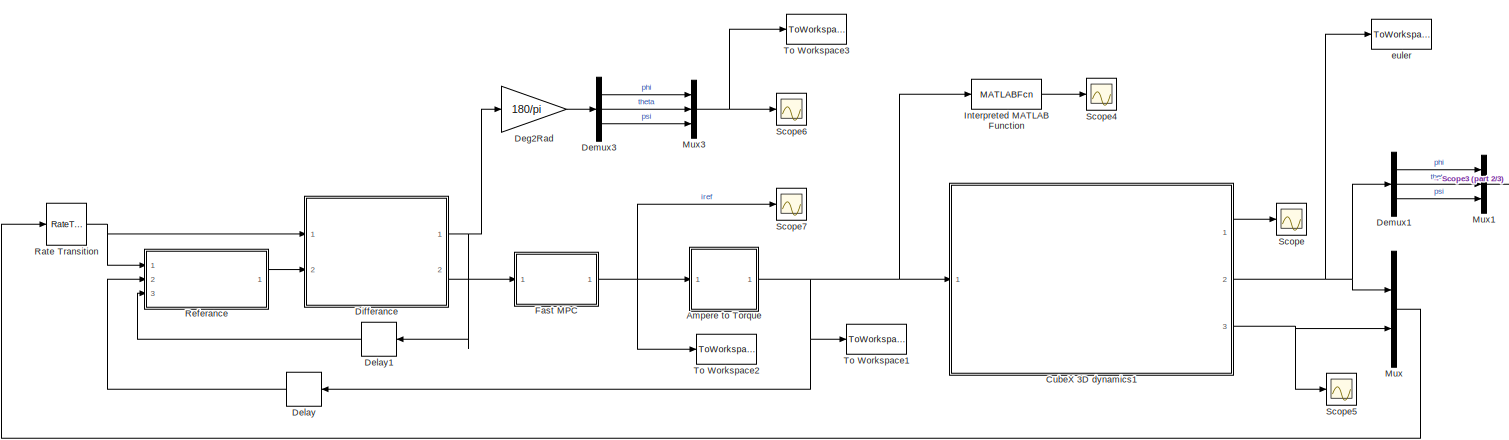
[diagram: root canvas - part 1/3, full width, top band]
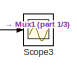
[diagram: root canvas - part 2/3, top right region]
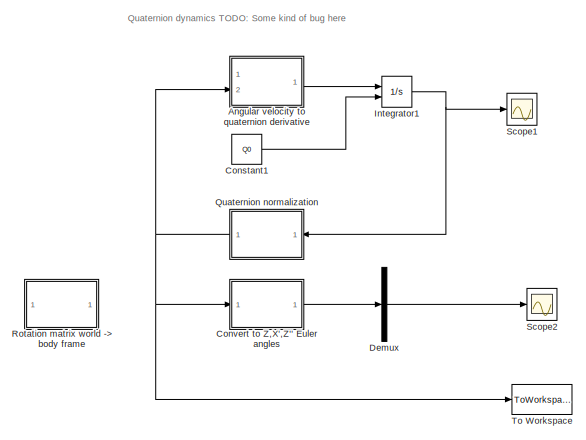
[diagram: root canvas - part 3/3, bottom center region]
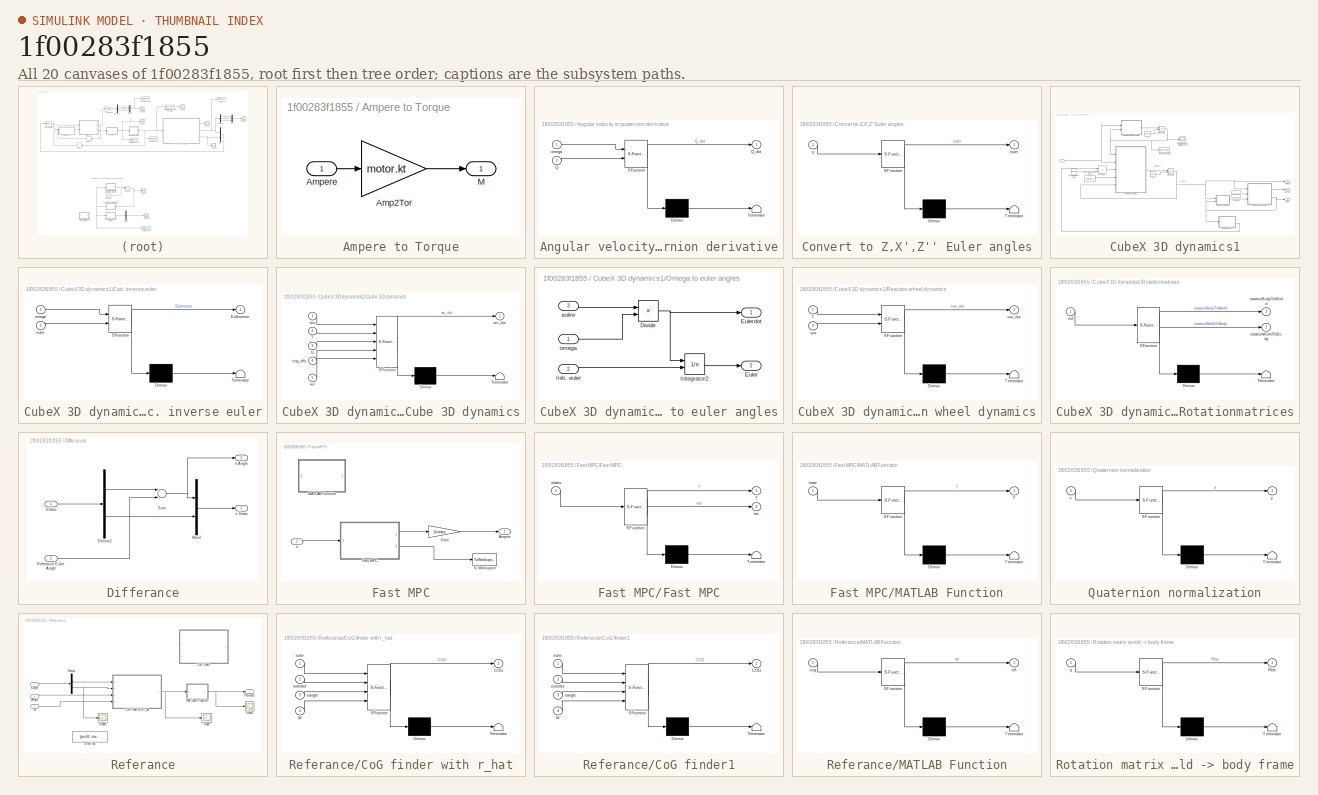
[diagram: thumbnail index - all 20 canvases of the model, root first then tree order]
MODEL slx_1f00283f1855
KIND model
CONFIG AbsTol = auto
CONFIG EnableMultiTasking = on
CONFIG FixedStep = auto
CONFIG MaxStep = auto
CONFIG MinStep = auto
CONFIG RelTol = 1e-3
CONFIG SampleTimeConstraint = Unconstrained
CONFIG Solver = VariableStepAuto
CONFIG SolverName = VariableStepAuto
CONFIG StartTime = 0.0
CONFIG StopTime = 2
WORKSPACE source: MAT-file member
WORKSPACE MCOS: class17 (value not decoded)
BLOCK [SubSystem] Ampere to Torque
  Ports = [1, 1]
  RequestExecContextInheritance = off
  Variant = off
BLOCK [Gain] Ampere to Torque/Amp2Tor
  Gain = motor.kt
  OutDataTypeStr = Inherit: Inherit via internal rule
  ParamDataTypeStr = Inherit: Inherit via internal rule
  SaturateOnIntegerOverflow = off
BLOCK [Inport] Ampere to Torque/Ampere
  IconDisplay = Port number
BLOCK [Outport] Ampere to Torque/M
  IconDisplay = Port number
BLOCK [SubSystem] Angular velocity to quaternion derivative
  Commented = on
  ErrorFcn = Stateflow.Translate.translate
  PermitHierarchicalResolution = ExplicitOnly
  Ports = [2, 1]
  RequestExecContextInheritance = off
  SFBlockType = MATLAB Function
  TreatAsAtomicUnit = on
  Variant = off
BLOCK [Demux] Angular velocity to quaternion derivative/ Demux 
  Outputs = 1
  Ports = [1, 1]
BLOCK [S-Function] Angular velocity to quaternion derivative/ SFunction 
  EnableBusSupport = on
  FunctionName = sf_sfun
  PortCounts = [2 2]
  Ports = [2, 2]
  SFcnIsStateOwnerBlock = off
  SFunctionDeploymentMode = off
  Tag = Stateflow S-Function cube_3d_simulation_model_fast_mpc 1
BLOCK [Terminator] Angular velocity to quaternion derivative/ Terminator 
BLOCK [Inport] Angular velocity to quaternion derivative/Q
  IconDisplay = Port number
  Port = 2
BLOCK [Outport] Angular velocity to quaternion derivative/Q_dot
  IconDisplay = Port number
BLOCK [Inport] Angular velocity to quaternion derivative/omega
  IconDisplay = Port number
BLOCK [Constant] Constant1
  Commented = on
  Value = Q0
BLOCK [SubSystem] Convert to Z,X',Z'' Euler angles
  Commented = on
  ErrorFcn = Stateflow.Translate.translate
  PermitHierarchicalResolution = ExplicitOnly
  Ports = [1, 1]
  RequestExecContextInheritance = off
  SFBlockType = MATLAB Function
  TreatAsAtomicUnit = on
  Variant = off
BLOCK [Demux] Convert to Z,X',Z'' Euler angles/ Demux 
  Outputs = 1
  Ports = [1, 1]
BLOCK [S-Function] Convert to Z,X',Z'' Euler angles/ SFunction 
  EnableBusSupport = on
  FunctionName = sf_sfun
  PortCounts = [1 2]
  Ports = [1, 2]
  SFcnIsStateOwnerBlock = off
  SFunctionDeploymentMode = off
  Tag = Stateflow S-Function cube_3d_simulation_model_fast_mpc 5
BLOCK [Terminator] Convert to Z,X',Z'' Euler angles/ Terminator 
BLOCK [Outport] Convert to Z,X',Z'' Euler angles/euler
  IconDisplay = Port number
BLOCK [Inport] Convert to Z,X',Z'' Euler angles/q
  IconDisplay = Port number
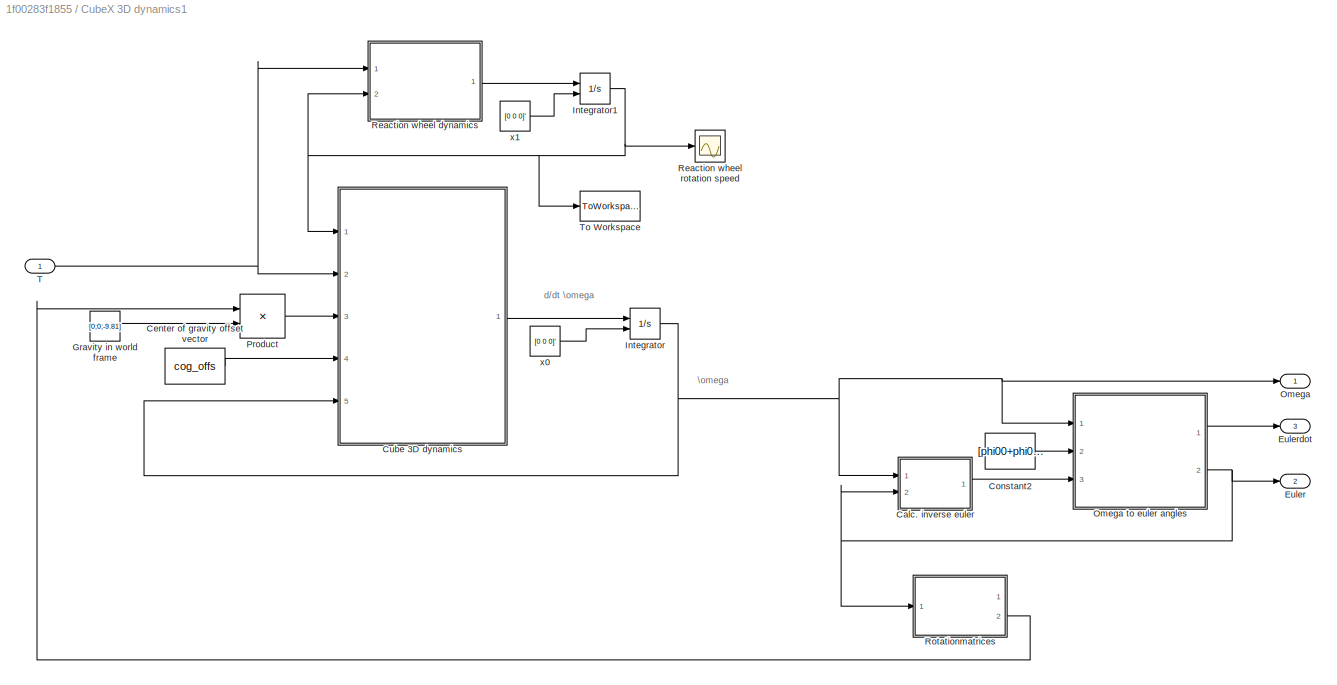
BLOCK [SubSystem] CubeX 3D dynamics1
  Ports = [1, 3]
  RequestExecContextInheritance = off
  Variant = off
BLOCK [SubSystem] CubeX 3D dynamics1/Calc. inverse euler
  ErrorFcn = Stateflow.Translate.translate
  PermitHierarchicalResolution = ExplicitOnly
  Ports = [2, 1]
  RequestExecContextInheritance = off
  SFBlockType = MATLAB Function
  TreatAsAtomicUnit = on
  Variant = off
BLOCK [Demux] CubeX 3D dynamics1/Calc. inverse euler/ Demux 
  Outputs = 1
  Ports = [1, 1]
BLOCK [S-Function] CubeX 3D dynamics1/Calc. inverse euler/ SFunction 
  EnableBusSupport = on
  FunctionName = sf_sfun
  PortCounts = [2 2]
  Ports = [2, 2]
  SFcnIsStateOwnerBlock = off
  SFunctionDeploymentMode = off
  Tag = Stateflow S-Function cube_3d_simulation_model_fast_mpc 11
BLOCK [Terminator] CubeX 3D dynamics1/Calc. inverse euler/ Terminator 
BLOCK [Outport] CubeX 3D dynamics1/Calc. inverse euler/EulInverse
  IconDisplay = Port number
BLOCK [Inport] CubeX 3D dynamics1/Calc. inverse euler/euler
  IconDisplay = Port number
  Port = 2
BLOCK [Inport] CubeX 3D dynamics1/Calc. inverse euler/omega
  IconDisplay = Port number
BLOCK [Constant] CubeX 3D dynamics1/Center of gravity offset vector
  Value = cog_offs
BLOCK [Constant] CubeX 3D dynamics1/Constant2
  Value = [phi00+phi0; theta00+theta0 ; psi00+psi0]
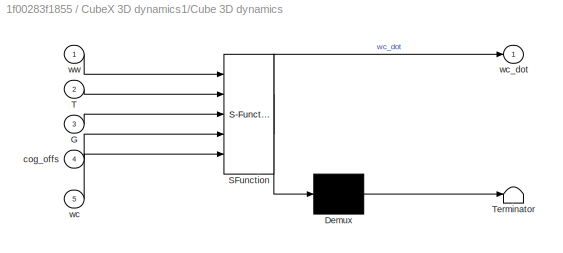
BLOCK [SubSystem] CubeX 3D dynamics1/Cube 3D dynamics
  ErrorFcn = Stateflow.Translate.translate
  PermitHierarchicalResolution = ExplicitOnly
  Ports = [5, 1]
  RequestExecContextInheritance = off
  SFBlockType = MATLAB Function
  TreatAsAtomicUnit = on
  Variant = off
BLOCK [Demux] CubeX 3D dynamics1/Cube 3D dynamics/ Demux 
  Outputs = 1
  Ports = [1, 1]
BLOCK [S-Function] CubeX 3D dynamics1/Cube 3D dynamics/ SFunction 
  EnableBusSupport = on
  FunctionName = sf_sfun
  Parameters = cube,wheel
  PortCounts = [5 2]
  Ports = [5, 2]
  SFcnIsStateOwnerBlock = off
  SFunctionDeploymentMode = off
  Tag = Stateflow S-Function cube_3d_simulation_model_fast_mpc 2
BLOCK [Terminator] CubeX 3D dynamics1/Cube 3D dynamics/ Terminator 
BLOCK [Inport] CubeX 3D dynamics1/Cube 3D dynamics/G
  IconDisplay = Port number
  Port = 3
BLOCK [Inport] CubeX 3D dynamics1/Cube 3D dynamics/T
  IconDisplay = Port number
  Port = 2
BLOCK [Inport] CubeX 3D dynamics1/Cube 3D dynamics/cog_offs
  IconDisplay = Port number
  Port = 4
BLOCK [Inport] CubeX 3D dynamics1/Cube 3D dynamics/wc
  IconDisplay = Port number
  Port = 5
BLOCK [Outport] CubeX 3D dynamics1/Cube 3D dynamics/wc_dot
  IconDisplay = Port number
BLOCK [Inport] CubeX 3D dynamics1/Cube 3D dynamics/ww
  IconDisplay = Port number
BLOCK [Outport] CubeX 3D dynamics1/Euler
  IconDisplay = Port number
  Port = 2
BLOCK [Outport] CubeX 3D dynamics1/Eulerdot
  IconDisplay = Port number
  Port = 3
BLOCK [Constant] CubeX 3D dynamics1/Gravity in world frame
  Value = [0;0;-9.81]
BLOCK [Integrator] CubeX 3D dynamics1/Integrator
  InitialConditionSource = external
  Ports = [2, 1]
BLOCK [Integrator] CubeX 3D dynamics1/Integrator1
  InitialConditionSource = external
  Ports = [2, 1]
BLOCK [Outport] CubeX 3D dynamics1/Omega
  IconDisplay = Port number
BLOCK [SubSystem] CubeX 3D dynamics1/Omega to euler angles
  Ports = [3, 2]
  RequestExecContextInheritance = off
  Variant = off
BLOCK [Product] CubeX 3D dynamics1/Omega to euler angles/Divide
  InputSameDT = off
  Inputs = **
  Multiplication = Matrix(*)
  OutDataTypeStr = Inherit: Inherit via internal rule
  Ports = [2, 1]
  RndMeth = Floor
  SaturateOnIntegerOverflow = off
BLOCK [Outport] CubeX 3D dynamics1/Omega to euler angles/Euler
  IconDisplay = Port number
  Port = 2
BLOCK [Outport] CubeX 3D dynamics1/Omega to euler angles/Eulerdot
  IconDisplay = Port number
BLOCK [Inport] CubeX 3D dynamics1/Omega to euler angles/Initi. euler
  IconDisplay = Port number
  Port = 2
BLOCK [Integrator] CubeX 3D dynamics1/Omega to euler angles/Integrator2
  InitialConditionSource = external
  Ports = [2, 1]
BLOCK [Inport] CubeX 3D dynamics1/Omega to euler angles/eulinv 
  IconDisplay = Port number
  Port = 3
BLOCK [Inport] CubeX 3D dynamics1/Omega to euler angles/omega
  IconDisplay = Port number
BLOCK [Product] CubeX 3D dynamics1/Product
  InputSameDT = off
  Multiplication = Matrix(*)
  OutDataTypeStr = Inherit: Inherit via internal rule
  Ports = [2, 1]
  RndMeth = Floor
  SaturateOnIntegerOverflow = off
BLOCK [SubSystem] CubeX 3D dynamics1/Reaction wheel dynamics
  ErrorFcn = Stateflow.Translate.translate
  PermitHierarchicalResolution = ExplicitOnly
  Ports = [2, 1]
  RequestExecContextInheritance = off
  SFBlockType = MATLAB Function
  TreatAsAtomicUnit = on
  Variant = off
BLOCK [Demux] CubeX 3D dynamics1/Reaction wheel dynamics/ Demux 
  Outputs = 1
  Ports = [1, 1]
BLOCK [S-Function] CubeX 3D dynamics1/Reaction wheel dynamics/ SFunction 
  EnableBusSupport = on
  FunctionName = sf_sfun
  Parameters = wheel
  PortCounts = [2 2]
  Ports = [2, 2]
  SFcnIsStateOwnerBlock = off
  SFunctionDeploymentMode = off
  Tag = Stateflow S-Function cube_3d_simulation_model_fast_mpc 6
BLOCK [Terminator] CubeX 3D dynamics1/Reaction wheel dynamics/ Terminator 
BLOCK [Inport] CubeX 3D dynamics1/Reaction wheel dynamics/T
  IconDisplay = Port number
BLOCK [Inport] CubeX 3D dynamics1/Reaction wheel dynamics/ww
  IconDisplay = Port number
  Port = 2
BLOCK [Outport] CubeX 3D dynamics1/Reaction wheel dynamics/ww_dot
  IconDisplay = Port number
BLOCK [Scope] CubeX 3D dynamics1/Reaction wheel rotation speed
  NumInputPorts = 1
  Ports = [1]
  ScopeSpecificationString = Simulink.scopes.TimeScopeBlockCfg('CurrentConfiguration', extmgr.ConfigurationSet(extmgr.Configuration('Core','General UI',true),extmgr.Configuration('Core','Source UI',true),extmgr.Configuration('Sources','WiredSimulink',true,'DataLoggingVariableName','ScopeData1'),extmgr.Configuration('Visuals','Time Domain',true,'SerializedDisplays',{struct('MinYLimReal','-116.30261','MaxYLimReal','89.79776','Y...<+1467ch>
BLOCK [SubSystem] CubeX 3D dynamics1/Rotationmatrices
  ErrorFcn = Stateflow.Translate.translate
  PermitHierarchicalResolution = ExplicitOnly
  Ports = [1, 2]
  RequestExecContextInheritance = off
  SFBlockType = MATLAB Function
  TreatAsAtomicUnit = on
  Variant = off
BLOCK [Demux] CubeX 3D dynamics1/Rotationmatrices/ Demux 
  Outputs = 1
  Ports = [1, 1]
BLOCK [S-Function] CubeX 3D dynamics1/Rotationmatrices/ SFunction 
  EnableBusSupport = on
  FunctionName = sf_sfun
  PortCounts = [1 3]
  Ports = [1, 3]
  SFcnIsStateOwnerBlock = off
  SFunctionDeploymentMode = off
  Tag = Stateflow S-Function cube_3d_simulation_model_fast_mpc 14
BLOCK [Terminator] CubeX 3D dynamics1/Rotationmatrices/ Terminator 
BLOCK [Inport] CubeX 3D dynamics1/Rotationmatrices/eul
  IconDisplay = Port number
BLOCK [Outport] CubeX 3D dynamics1/Rotationmatrices/rotationBodyToWorld
  IconDisplay = Port number
BLOCK [Outport] CubeX 3D dynamics1/Rotationmatrices/rotationWorldToBody
  IconDisplay = Port number
  Port = 2
BLOCK [Inport] CubeX 3D dynamics1/T
  IconDisplay = Port number
BLOCK [ToWorkspace] CubeX 3D dynamics1/To Workspace
  FixptAsFi = on
  MaxDataPoints = inf
  Ports = [1]
  SampleTime = Ts.controller
  Save2DSignal = 3-D array (concatenate along third dimension)
  SaveFormat = Timeseries
  VariableName = ww
BLOCK [Constant] CubeX 3D dynamics1/x0
  Value = [0 0 0]'
BLOCK [Constant] CubeX 3D dynamics1/x1
  Value = [0 0 0]'
BLOCK [Gain] Deg2Rad
  Gain = 180/pi
  OutDataTypeStr = Inherit: Inherit via internal rule
  ParamDataTypeStr = Inherit: Inherit via internal rule
  SaturateOnIntegerOverflow = off
BLOCK [Delay] Delay
  DelayLength = 1
  InputPortMap = u0
  Ports = [1, 1]
BLOCK [Delay] Delay1
  DelayLength = 1
  InputPortMap = u0
  Ports = [1, 1]
BLOCK [Demux] Demux
  Commented = on
  DisplayOption = bar
  Outputs = 3
  Ports = [1, 3]
BLOCK [Demux] Demux1
  DisplayOption = bar
  Outputs = 3
  Ports = [1, 3]
BLOCK [Demux] Demux3
  DisplayOption = bar
  Outputs = 3
  Ports = [1, 3]
BLOCK [SubSystem] Differance
  Ports = [2, 2]
  RequestExecContextInheritance = off
  Variant = off
BLOCK [Demux] Differance/Demux2
  DisplayOption = bar
  Outputs = 2
  Ports = [1, 2]
BLOCK [Mux] Differance/Mux2
  DisplayOption = bar
  Inputs = 2
  Ports = [2, 1]
BLOCK [Inport] Differance/Referance Euler Angle
  IconDisplay = Port number
  Port = 2
BLOCK [Inport] Differance/States
  IconDisplay = Port number
BLOCK [Sum] Differance/Sum
  InputSameDT = off
  Inputs = +-
  OutDataTypeStr = Inherit: Inherit via internal rule
  Ports = [2, 1]
  SaturateOnIntegerOverflow = off
BLOCK [Outport] Differance/e Angle
  IconDisplay = Port number
BLOCK [Outport] Differance/e State
  IconDisplay = Port number
  Port = 2
BLOCK [SubSystem] Fast MPC
  Ports = [1, 1]
  RequestExecContextInheritance = off
  Variant = off
BLOCK [Outport] Fast MPC/Ampere
  IconDisplay = Port number
BLOCK [SubSystem] Fast MPC/Fast MPC
  ErrorFcn = Stateflow.Translate.translate
  PermitHierarchicalResolution = ExplicitOnly
  Ports = [1, 2]
  RequestExecContextInheritance = off
  SFBlockType = MATLAB Function
  TreatAsAtomicUnit = on
  Variant = off
BLOCK [Demux] Fast MPC/Fast MPC/ Demux 
  Outputs = 1
  Ports = [1, 1]
BLOCK [S-Function] Fast MPC/Fast MPC/ SFunction 
  EnableBusSupport = on
  FunctionName = sf_sfun
  Parameters = fMPC_3d
  PortCounts = [1 3]
  Ports = [1, 3]
  SFcnIsStateOwnerBlock = off
  SFunctionDeploymentMode = off
  Tag = Stateflow S-Function cube_3d_simulation_model_fast_mpc 10
BLOCK [Terminator] Fast MPC/Fast MPC/ Terminator 
BLOCK [Outport] Fast MPC/Fast MPC/T
  IconDisplay = Port number
BLOCK [Outport] Fast MPC/Fast MPC/iter
  IconDisplay = Port number
  Port = 2
BLOCK [Inport] Fast MPC/Fast MPC/states
  IconDisplay = Port number
BLOCK [Gain] Fast MPC/Gain
  Gain = 1/motor.kt
  OutDataTypeStr = Inherit: Inherit via internal rule
  ParamDataTypeStr = Inherit: Inherit via internal rule
  SaturateOnIntegerOverflow = off
BLOCK [SubSystem] Fast MPC/MATLAB Function
  Commented = on
  ErrorFcn = Stateflow.Translate.translate
  PermitHierarchicalResolution = ExplicitOnly
  Ports = [1, 1]
  RequestExecContextInheritance = off
  SFBlockType = MATLAB Function
  TreatAsAtomicUnit = on
  Variant = off
BLOCK [Demux] Fast MPC/MATLAB Function/ Demux 
  Outputs = 1
  Ports = [1, 1]
BLOCK [S-Function] Fast MPC/MATLAB Function/ SFunction 
  EnableBusSupport = on
  FunctionName = sf_sfun
  Parameters = MPC_3d
  PortCounts = [1 2]
  Ports = [1, 2]
  SFcnIsStateOwnerBlock = off
  SFunctionDeploymentMode = off
  Tag = Stateflow S-Function cube_3d_simulation_model_fast_mpc 13
BLOCK [Terminator] Fast MPC/MATLAB Function/ Terminator 
BLOCK [Outport] Fast MPC/MATLAB Function/T
  IconDisplay = Port number
BLOCK [Inport] Fast MPC/MATLAB Function/state
  IconDisplay = Port number
BLOCK [ToWorkspace] Fast MPC/To Workspace
  FixptAsFi = on
  MaxDataPoints = inf
  Ports = [1]
  SampleTime = -1
  Save2DSignal = 3-D array (concatenate along third dimension)
  SaveFormat = Timeseries
  VariableName = iter
BLOCK [Inport] Fast MPC/e
  IconDisplay = Port number
BLOCK [Integrator] Integrator1
  Commented = on
  InitialConditionSource = external
  Ports = [2, 1]
BLOCK [MATLABFcn] Interpreted MATLAB Function
  MATLABFcn = u(1)^2 +u(2)^2+u(3)^2
  Ports = [1, 1]
BLOCK [Mux] Mux
  DisplayOption = bar
  Inputs = 2
  Ports = [2, 1]
BLOCK [Mux] Mux1
  DisplayOption = bar
  Inputs = 3
  Ports = [3, 1]
BLOCK [Mux] Mux3
  DisplayOption = bar
  Inputs = 3
  Ports = [3, 1]
BLOCK [SubSystem] Quaternion normalization
  Commented = on
  ErrorFcn = Stateflow.Translate.translate
  PermitHierarchicalResolution = ExplicitOnly
  Ports = [1, 1]
  RequestExecContextInheritance = off
  SFBlockType = MATLAB Function
  TreatAsAtomicUnit = on
  Variant = off
BLOCK [Demux] Quaternion normalization/ Demux 
  Outputs = 1
  Ports = [1, 1]
BLOCK [S-Function] Quaternion normalization/ SFunction 
  EnableBusSupport = on
  FunctionName = sf_sfun
  PortCounts = [1 2]
  Ports = [1, 2]
  SFcnIsStateOwnerBlock = off
  SFunctionDeploymentMode = off
  Tag = Stateflow S-Function cube_3d_simulation_model_fast_mpc 3
BLOCK [Terminator] Quaternion normalization/ Terminator 
BLOCK [Inport] Quaternion normalization/x
  IconDisplay = Port number
BLOCK [Outport] Quaternion normalization/y
  IconDisplay = Port number
BLOCK [RateTransition] Rate Transition
  OutPortSampleTime = Ts.controller
BLOCK [SubSystem] Referance
  Ports = [3, 1]
  RequestExecContextInheritance = off
  Variant = off
BLOCK [SubSystem] Referance/CoG finder with r_hat
  ErrorFcn = Stateflow.Translate.translate
  PermitHierarchicalResolution = ExplicitOnly
  Ports = [4, 1]
  RequestExecContextInheritance = off
  SFBlockType = MATLAB Function
  TreatAsAtomicUnit = on
  Variant = off
BLOCK [Demux] Referance/CoG finder with r_hat/ Demux 
  Outputs = 1
  Ports = [1, 1]
BLOCK [S-Function] Referance/CoG finder with r_hat/ SFunction 
  EnableBusSupport = on
  FunctionName = sf_sfun
  Parameters = Ts,cube
  PortCounts = [4 2]
  Ports = [4, 2]
  SFcnIsStateOwnerBlock = off
  SFunctionDeploymentMode = off
  Tag = Stateflow S-Function cube_3d_simulation_model_fast_mpc 9
BLOCK [Terminator] Referance/CoG finder with r_hat/ Terminator 
BLOCK [Outport] Referance/CoG finder with r_hat/COG
  IconDisplay = Port number
BLOCK [Inport] Referance/CoG finder with r_hat/M
  IconDisplay = Port number
  Port = 4
BLOCK [Inport] Referance/CoG finder with r_hat/eangle
  IconDisplay = Port number
  Port = 3
BLOCK [Inport] Referance/CoG finder with r_hat/euler
  IconDisplay = Port number
BLOCK [Inport] Referance/CoG finder with r_hat/eulerdot
  IconDisplay = Port number
  Port = 2
BLOCK [SubSystem] Referance/CoG finder1
  Commented = on
  ErrorFcn = Stateflow.Translate.translate
  PermitHierarchicalResolution = ExplicitOnly
  Ports = [4, 1]
  RequestExecContextInheritance = off
  SFBlockType = MATLAB Function
  TreatAsAtomicUnit = on
  Variant = off
BLOCK [Demux] Referance/CoG finder1/ Demux 
  Outputs = 1
  Ports = [1, 1]
BLOCK [S-Function] Referance/CoG finder1/ SFunction 
  EnableBusSupport = on
  FunctionName = sf_sfun
  Parameters = Ts,cube
  PortCounts = [4 2]
  Ports = [4, 2]
  SFcnIsStateOwnerBlock = off
  SFunctionDeploymentMode = off
  Tag = Stateflow S-Function cube_3d_simulation_model_fast_mpc 8
BLOCK [Terminator] Referance/CoG finder1/ Terminator 
BLOCK [Outport] Referance/CoG finder1/COG
  IconDisplay = Port number
BLOCK [Inport] Referance/CoG finder1/M
  IconDisplay = Port number
  Port = 4
BLOCK [Inport] Referance/CoG finder1/eangle
  IconDisplay = Port number
  Port = 3
BLOCK [Inport] Referance/CoG finder1/euler
  IconDisplay = Port number
BLOCK [Inport] Referance/CoG finder1/eulerdot
  IconDisplay = Port number
  Port = 2
BLOCK [Demux] Referance/Demux
  DisplayOption = bar
  Outputs = 2
  Ports = [1, 2]
BLOCK [Inport] Referance/M
  IconDisplay = Port number
  Port = 2
BLOCK [SubSystem] Referance/MATLAB Function
  ErrorFcn = Stateflow.Translate.translate
  PermitHierarchicalResolution = ExplicitOnly
  Ports = [1, 1]
  RequestExecContextInheritance = off
  SFBlockType = MATLAB Function
  TreatAsAtomicUnit = on
  Variant = off
BLOCK [Demux] Referance/MATLAB Function/ Demux 
  Outputs = 1
  Ports = [1, 1]
BLOCK [S-Function] Referance/MATLAB Function/ SFunction 
  EnableBusSupport = on
  FunctionName = sf_sfun
  Parameters = cube
  PortCounts = [1 2]
  Ports = [1, 2]
  SFcnIsStateOwnerBlock = off
  SFunctionDeploymentMode = off
  Tag = Stateflow S-Function cube_3d_simulation_model_fast_mpc 12
BLOCK [Terminator] Referance/MATLAB Function/ Terminator 
BLOCK [Inport] Referance/MATLAB Function/cog
  IconDisplay = Port number
BLOCK [Outport] Referance/MATLAB Function/ref
  IconDisplay = Port number
BLOCK [Constant] Referance/Offset rad
  Commented = on
  SampleTime = Ts.controller
  Value = [phi00; theta00; psi00]
BLOCK [Outport] Referance/Referance
  IconDisplay = Port number
BLOCK [Scope] Referance/Scope
  NumInputPorts = 1
  Ports = [1]
  ScopeSpecificationString = Simulink.scopes.TimeScopeBlockCfg('CurrentConfiguration', extmgr.ConfigurationSet(extmgr.Configuration('Core','General UI',true),extmgr.Configuration('Core','Source UI',true),extmgr.Configuration('Sources','WiredSimulink',true,'DataLoggingVariableName','ScopeData1'),extmgr.Configuration('Visuals','Time Domain',true,'SerializedDisplays',{struct('MinYLimReal','0.08','MaxYLimReal','0.1','YLabelReal',...<+1477ch>
BLOCK [Scope] Referance/Scope1
  NumInputPorts = 1
  Ports = [1]
  ScopeSpecificationString = Simulink.scopes.TimeScopeBlockCfg('CurrentConfiguration', extmgr.ConfigurationSet(extmgr.Configuration('Core','General UI',true),extmgr.Configuration('Core','Source UI',true),extmgr.Configuration('Sources','WiredSimulink',true,'DataLoggingVariableName','ScopeData2'),extmgr.Configuration('Visuals','Time Domain',true,'SerializedDisplays',{struct('MinYLimReal','-0.03682','MaxYLimReal','0.00479','YLab...<+1417ch>
BLOCK [Scope] Referance/Scope2
  NumInputPorts = 1
  Ports = [1]
  ScopeSpecificationString = Simulink.scopes.TimeScopeBlockCfg('CurrentConfiguration', extmgr.ConfigurationSet(extmgr.Configuration('Core','General UI',true),extmgr.Configuration('Core','Source UI',true),extmgr.Configuration('Sources','WiredSimulink',true,'DataLoggingVariableName','ScopeData3'),extmgr.Configuration('Visuals','Time Domain',true,'SerializedDisplays',{struct('MinYLimReal','-0.11941','MaxYLimReal','1.07473','YLab...<+1487ch>
BLOCK [Inport] Referance/States
  IconDisplay = Port number
BLOCK [Inport] Referance/eAngle
  IconDisplay = Port number
  Port = 3
BLOCK [SubSystem] Rotation matrix world -> body frame
  Commented = on
  ErrorFcn = Stateflow.Translate.translate
  PermitHierarchicalResolution = ExplicitOnly
  Ports = [1, 1]
  RequestExecContextInheritance = off
  SFBlockType = MATLAB Function
  TreatAsAtomicUnit = on
  Variant = off
BLOCK [Demux] Rotation matrix world -> body frame/ Demux 
  Outputs = 1
  Ports = [1, 1]
BLOCK [S-Function] Rotation matrix world -> body frame/ SFunction 
  EnableBusSupport = on
  FunctionName = sf_sfun
  PortCounts = [1 2]
  Ports = [1, 2]
  SFcnIsStateOwnerBlock = off
  SFunctionDeploymentMode = off
  Tag = Stateflow S-Function cube_3d_simulation_model_fast_mpc 4
BLOCK [Terminator] Rotation matrix world -> body frame/ Terminator 
BLOCK [Outport] Rotation matrix world -> body frame/Rba
  IconDisplay = Port number
BLOCK [Inport] Rotation matrix world -> body frame/q
  IconDisplay = Port number
BLOCK [Scope] Scope
  NumInputPorts = 1
  Ports = [1]
  ScopeSpecificationString = Simulink.scopes.TimeScopeBlockCfg('CurrentConfiguration', extmgr.ConfigurationSet(extmgr.Configuration('Core','General UI',true),extmgr.Configuration('Core','Source UI',true),extmgr.Configuration('Sources','WiredSimulink',true,'DataLoggingVariableName','ScopeData1'),extmgr.Configuration('Visuals','Time Domain',true,'SerializedDisplays',{struct('MinYLimReal','-0.16619','MaxYLimReal','0.22812','YLab...<+1502ch>
BLOCK [Scope] Scope1
  Commented = on
  NumInputPorts = 1
  Ports = [1]
  ScopeSpecificationString = Simulink.scopes.TimeScopeBlockCfg('CurrentConfiguration', extmgr.ConfigurationSet(extmgr.Configuration('Core','General UI',true),extmgr.Configuration('Core','Source UI',true),extmgr.Configuration('Sources','WiredSimulink',true,'DataLoggingVariableName','ScopeData1'),extmgr.Configuration('Visuals','Time Domain',true,'SerializedDisplays',{struct('MinYLimReal','-0.92556','MaxYLimReal','1.22004','YLab...<+1491ch>
BLOCK [Scope] Scope2
  Commented = on
  NumInputPorts = 1
  Ports = [1]
  ScopeSpecificationString = Simulink.scopes.TimeScopeBlockCfg('CurrentConfiguration', extmgr.ConfigurationSet(extmgr.Configuration('Core','General UI',true),extmgr.Configuration('Core','Source UI',true),extmgr.Configuration('Sources','WiredSimulink',true,'DataLoggingVariableName','ScopeData1'),extmgr.Configuration('Visuals','Time Domain',true,'SerializedDisplays',{struct('MinYLimReal','-2.57465','MaxYLimReal','4.93053','YLab...<+1437ch>
BLOCK [Scope] Scope3
  NumInputPorts = 1
  Ports = [1]
  ScopeSpecificationString = Simulink.scopes.TimeScopeBlockCfg('CurrentConfiguration', extmgr.ConfigurationSet(extmgr.Configuration('Core','General UI',true),extmgr.Configuration('Core','Source UI',true),extmgr.Configuration('Sources','WiredSimulink',true,'DataLoggingVariableName','ScopeData1'),extmgr.Configuration('Visuals','Time Domain',true,'SerializedDisplays',{struct('MinYLimReal','-0.12264','MaxYLimReal','1.10418','YLab...<+1426ch>
BLOCK [Scope] Scope4
  NumInputPorts = 1
  Ports = [1]
  ScopeSpecificationString = Simulink.scopes.TimeScopeBlockCfg('CurrentConfiguration', extmgr.ConfigurationSet(extmgr.Configuration('Core','General UI',true),extmgr.Configuration('Core','Source UI',true),extmgr.Configuration('Sources','WiredSimulink',true,'DataLoggingVariableName','ScopeData2'),extmgr.Configuration('Visuals','Time Domain',true,'SerializedDisplays',{struct('MinYLimReal','-0.00632','MaxYLimReal','0.05685','YLab...<+1458ch>
BLOCK [Scope] Scope5
  NumInputPorts = 1
  Ports = [1]
  ScopeSpecificationString = Simulink.scopes.TimeScopeBlockCfg('CurrentConfiguration', extmgr.ConfigurationSet(extmgr.Configuration('Core','General UI',true),extmgr.Configuration('Core','Source UI',true),extmgr.Configuration('Sources','WiredSimulink',true,'DataLoggingVariableName','ScopeData2'),extmgr.Configuration('Visuals','Time Domain',true,'SerializedDisplays',{struct('MinYLimReal','-0.25509','MaxYLimReal','0.27456','YLab...<+1431ch>
BLOCK [Scope] Scope6
  NumInputPorts = 1
  Ports = [1]
  ScopeSpecificationString = Simulink.scopes.TimeScopeBlockCfg('CurrentConfiguration', extmgr.ConfigurationSet(extmgr.Configuration('Core','General UI',true),extmgr.Configuration('Core','Source UI',true),extmgr.Configuration('Sources','WiredSimulink',true,'DataLoggingVariableName','ScopeData1'),extmgr.Configuration('Visuals','Time Domain',true,'SerializedDisplays',{struct('MinYLimReal','-2.07969','MaxYLimReal','3.71723','YLab...<+1446ch>
BLOCK [Scope] Scope7
  NumInputPorts = 1
  Ports = [1]
  ScopeSpecificationString = Simulink.scopes.TimeScopeBlockCfg('CurrentConfiguration', extmgr.ConfigurationSet(extmgr.Configuration('Core','General UI',true),extmgr.Configuration('Core','Source UI',true),extmgr.Configuration('Sources','WiredSimulink',true,'DataLoggingVariableName','ScopeData2'),extmgr.Configuration('Visuals','Time Domain',true,'SerializedDisplays',{struct('MinYLimReal','-5.00000','MaxYLimReal','5.00000','YLab...<+1453ch>
BLOCK [ToWorkspace] To Workspace
  Commented = on
  FixptAsFi = on
  MaxDataPoints = inf
  Ports = [1]
  SampleTime = -1
  Save2DSignal = 3-D array (concatenate along third dimension)
  SaveFormat = Timeseries
  VariableName = orientation
BLOCK [ToWorkspace] To Workspace1
  FixptAsFi = on
  MaxDataPoints = inf
  Ports = [1]
  SampleTime = -1
  Save2DSignal = 3-D array (concatenate along third dimension)
  SaveFormat = Timeseries
  VariableName = M
BLOCK [ToWorkspace] To Workspace2
  FixptAsFi = on
  MaxDataPoints = inf
  Ports = [1]
  SampleTime = -1
  Save2DSignal = 3-D array (concatenate along third dimension)
  SaveFormat = Timeseries
  VariableName = iref
BLOCK [ToWorkspace] To Workspace3
  FixptAsFi = on
  MaxDataPoints = inf
  Ports = [1]
  SampleTime = -1
  Save2DSignal = 3-D array (concatenate along third dimension)
  SaveFormat = Timeseries
  VariableName = deviaiton_angle
BLOCK [ToWorkspace] euler 
  FixptAsFi = on
  MaxDataPoints = inf
  Ports = [1]
  SampleTime = -1
  Save2DSignal = 3-D array (concatenate along third dimension)
  SaveFormat = Timeseries
  VariableName = eulerOut
ANNOTATION (root): Quaternion dynamics TODO: Some kind of bug here
ANNOTATION CubeX 3D dynamics1: \omega
ANNOTATION CubeX 3D dynamics1: d/dt \omega
LINE Ampere to Torque/Amp2Tor:1 -> Ampere to Torque/M:1
LINE Ampere to Torque/Ampere:1 -> Ampere to Torque/Amp2Tor:1
NET Ampere to Torque:1 -> CubeX 3D dynamics1:1, Delay:1, Interpreted MATLAB Function:1, To Workspace1:1
LINE Angular velocity to quaternion derivative:1 -> Integrator1:1
LINE Constant1:1 -> Integrator1:2
LINE Convert to Z,X',Z'' Euler angles:1 -> Demux:1
LINE CubeX 3D dynamics1/Calc. inverse euler:1 -> CubeX 3D dynamics1/Omega to euler angles:3
LINE CubeX 3D dynamics1/Center of gravity offset vector:1 -> CubeX 3D dynamics1/Cube 3D dynamics:4
LINE CubeX 3D dynamics1/Constant2:1 -> CubeX 3D dynamics1/Omega to euler angles:2
LINE CubeX 3D dynamics1/Cube 3D dynamics:1 -> CubeX 3D dynamics1/Integrator:1
LINE CubeX 3D dynamics1/Gravity in world frame:1 -> CubeX 3D dynamics1/Product:2
NET CubeX 3D dynamics1/Integrator1:1 -> CubeX 3D dynamics1/Cube 3D dynamics:1, CubeX 3D dynamics1/Reaction wheel dynamics:2, CubeX 3D dynamics1/Reaction wheel rotation speed:1, CubeX 3D dynamics1/To Workspace:1
NET CubeX 3D dynamics1/Integrator:1 -> CubeX 3D dynamics1/Calc. inverse euler:1, CubeX 3D dynamics1/Cube 3D dynamics:5, CubeX 3D dynamics1/Omega to euler angles:1, CubeX 3D dynamics1/Omega:1
NET CubeX 3D dynamics1/Omega to euler angles/Divide:1 -> CubeX 3D dynamics1/Omega to euler angles/Eulerdot:1, CubeX 3D dynamics1/Omega to euler angles/Integrator2:1
LINE CubeX 3D dynamics1/Omega to euler angles/Initi. euler:1 -> CubeX 3D dynamics1/Omega to euler angles/Integrator2:2
LINE CubeX 3D dynamics1/Omega to euler angles/Integrator2:1 -> CubeX 3D dynamics1/Omega to euler angles/Euler:1
LINE CubeX 3D dynamics1/Omega to euler angles/eulinv :1 -> CubeX 3D dynamics1/Omega to euler angles/Divide:1
LINE CubeX 3D dynamics1/Omega to euler angles/omega:1 -> CubeX 3D dynamics1/Omega to euler angles/Divide:2
LINE CubeX 3D dynamics1/Omega to euler angles:1 -> CubeX 3D dynamics1/Eulerdot:1
NET CubeX 3D dynamics1/Omega to euler angles:2 -> CubeX 3D dynamics1/Calc. inverse euler:2, CubeX 3D dynamics1/Euler:1, CubeX 3D dynamics1/Rotationmatrices:1
LINE CubeX 3D dynamics1/Product:1 -> CubeX 3D dynamics1/Cube 3D dynamics:3
LINE CubeX 3D dynamics1/Reaction wheel dynamics:1 -> CubeX 3D dynamics1/Integrator1:1
LINE CubeX 3D dynamics1/Rotationmatrices:2 -> CubeX 3D dynamics1/Product:1
NET CubeX 3D dynamics1/T:1 -> CubeX 3D dynamics1/Cube 3D dynamics:2, CubeX 3D dynamics1/Reaction wheel dynamics:1
LINE CubeX 3D dynamics1/x0:1 -> CubeX 3D dynamics1/Integrator:2
LINE CubeX 3D dynamics1/x1:1 -> CubeX 3D dynamics1/Integrator1:2
LINE CubeX 3D dynamics1:1 -> Scope:1
NET CubeX 3D dynamics1:2 -> Demux1:1, Mux:1, euler :1
NET CubeX 3D dynamics1:3 -> Mux:2, Scope5:1
LINE Deg2Rad:1 -> Demux3:1
LINE Delay1:1 -> Referance:3
LINE Delay:1 -> Referance:2
LINE Demux1:1 -> Mux1:1
LINE Demux1:2 -> Mux1:2
LINE Demux1:3 -> Mux1:3
LINE Demux3:1 -> Mux3:1
LINE Demux3:2 -> Mux3:2
LINE Demux3:3 -> Mux3:3
LINE Demux:2 -> Scope2:1
LINE Differance/Demux2:1 -> Differance/Sum:1
LINE Differance/Demux2:2 -> Differance/Mux2:2
LINE Differance/Mux2:1 -> Differance/e State:1
LINE Differance/Referance Euler Angle:1 -> Differance/Sum:2
LINE Differance/States:1 -> Differance/Demux2:1
NET Differance/Sum:1 -> Differance/Mux2:1, Differance/e Angle:1
NET Differance:1 -> Deg2Rad:1, Delay1:1
LINE Differance:2 -> Fast MPC:1
LINE Fast MPC/Fast MPC:1 -> Fast MPC/Gain:1
LINE Fast MPC/Fast MPC:2 -> Fast MPC/To Workspace:1
LINE Fast MPC/Gain:1 -> Fast MPC/Ampere:1
LINE Fast MPC/e:1 -> Fast MPC/Fast MPC:1
NET Fast MPC:1 -> Ampere to Torque:1, Scope7:1, To Workspace2:1
NET Integrator1:1 -> Quaternion normalization:1, Scope1:1
LINE Interpreted MATLAB Function:1 -> Scope4:1
LINE Mux1:1 -> Scope3:1
NET Mux3:1 -> Scope6:1, To Workspace3:1
LINE Mux:1 -> Rate Transition:1
NET Quaternion normalization:1 -> Angular velocity to quaternion derivative:2, Convert to Z,X',Z'' Euler angles:1, To Workspace:1
NET Rate Transition:1 -> Differance:1, Referance:1
NET Referance/CoG finder with r_hat:1 -> Referance/MATLAB Function:1, Referance/Scope:1
LINE Referance/Demux:1 -> Referance/CoG finder with r_hat:1
NET Referance/Demux:2 -> Referance/CoG finder with r_hat:2, Referance/Scope1:1
LINE Referance/M:1 -> Referance/CoG finder with r_hat:4
NET Referance/MATLAB Function:1 -> Referance/Referance:1, Referance/Scope2:1
LINE Referance/States:1 -> Referance/Demux:1
LINE Referance/eAngle:1 -> Referance/CoG finder with r_hat:3
LINE Referance:1 -> Differance:2
note: NET lines group one-source signal fan-out (src -> all destinations, sorted); 1:1 wires keep LINE
CHART Angular velocity to quaternion derivative states=1 transitions=1
  STATE_LABEL 'eML_blk_kernel()'
  STATE_LABEL 'SCRIPT:\nfunction Q_dot = fcn(omega, Q)\n%#codegen\n    \n   omega = omega(1:3); \n   q0=Q(1);   q1=Q(2);   q2=Q(3);   q3=Q(4);\n   \n   %The matrix that relates angular velocity in the body frame to the\n   %quaternion derivatives. From : https://www.control.isy.liu.se/student/tsrt14/file/orientation.pdf \n   Sbar=[-q1    -q2     -q3;\n          q0    -q3      q2;\n          q3    q0      -q1;\n         -q2 ...<+57ch>'
CHART CubeX 3D dynamics1/Cube 3D dynamics states=1 transitions=1
  STATE_LABEL 'eML_blk_kernel()'
  STATE_LABEL 'SCRIPT:\nfunction wc_dot = fcn(ww, T, G, cog_offs, wc, cube, wheel)\n%#codegen\n\n% T  - the torque input from the motors \n% G  - the gravity vector expressed in the body frame \n% wc - the state vector (cubes angular rate)\n% ww - the reactions wheels angular rate \n% cog_offs - offset vector \n% cube - parameter struct \n\n%Linear momementum of the cube casing\nLc= cross(wc,(cube.I3D_tilde * wc));\n\n% Wheel...<+233ch>'
CHART Quaternion normalization states=1 transitions=1
  STATE_LABEL 'eML_blk_kernel()'
  STATE_LABEL 'SCRIPT:\nfunction y = fcn(x)\n%#codegen\n\n%Reportedly, numerical errors can make quaternion loose their unit length\n%property. This is the remedy.  \n\n  x(1:4)  = x(1:4) / norm(x(1:4));\n  \n  %Enforce q0 -> 0 to avoid ambiguity \n  if x(1) < 0,\n    x(1:4) = -x(1:4);\n  end\n\ny = x;'
CHART Rotation matrix world -> body frame states=1 transitions=1
  STATE_LABEL 'eML_blk_kernel()'
  STATE_LABEL 'SCRIPT:\nfunction Rba = fcn(q)\n%#codegen\n\n    R = zeros(3,3); %Added 3 dimensional result array for codegen\n    \n    R(1,1) = 2.*q(1).^2-1+2.*q(2).^2;\n    R(1,2) = 2.*(q(2).*q(3)+q(1).*q(4));\n    R(1,3) = 2.*(q(2).*q(4)-q(1).*q(3));\n    R(2,1) = 2.*(q(2).*q(3)-q(1).*q(4));\n    R(2,2) = 2.*q(1).^2-1+2.*q(3).^2;\n    R(2,3) = 2.*(q(3).*q(4)+q(1).*q(2));\n    R(3,1) = 2.*(q(2).*q(4)+q(1).*q(3));\n    R(3...<+83ch>'
CHART Convert to Z,X',Z'' Euler angles states=1 transitions=1
  STATE_LABEL 'eML_blk_kernel()'
  STATE_LABEL "SCRIPT:\nfunction euler = fcn(q)\n%#codegen\n\n%Convert quaternions first to parts of rotation matrix and then to Z-X'-Z''\n%euler angles. Note that the angles are not the same as used in for\n%instance magdwick as standard! \n\n\n    R = zeros(3,3); %Added 3 dimensional result array for codegen  \n    \n    R(1,3) = 2.*(q(2).*q(4)-q(1).*q(3));\n     R(2,3) = 2.*(q(3).*q(4)+q(1).*q(2));\n    \n    R(3,1) = 2.*(...<+246ch>"
CHART CubeX 3D dynamics1/Reaction wheel dynamics states=1 transitions=1
  STATE_LABEL 'eML_blk_kernel()'
  STATE_LABEL 'SCRIPT:\nfunction ww_dot = fcn(T, ww, wheel)\n\n% Reaction wheel dynamics\n\n% T             - Inpu torque to the motor\n% ww            - Angular rate of the wheel\n% wheel.Theta_z - Inertia matrix around z axis for the wheels\n% wheel.bl      - Friction coefficient.\n\nww_dot = inv(wheel.Theta_z) * (T - (wheel.bl*ww));'
CHART Referance/CoG finder1 states=1 transitions=1
  STATE_LABEL 'eML_blk_kernel()'
  STATE_LABEL 'SCRIPT:\nfunction COG = fcn(euler,eulerdot,eangle ,M , Ts, cube)\n\npersistent cog L_cog\n\ntheta = euler(2);\npsi = euler(3);\n\nif isempty(cog)\n   cog = zeros(3,1);\n   Tf_cog = 100;         % Time Constant % 0.04\n   L_cog  = Ts.controller/(Tf_cog + Ts.controller);  % Filter gain\nend\n\nif (norm(eulerdot) < .1 && norm(eulerdot) > 0  && abs(eangle(2)) < deg2rad(2) && abs(eangle(3)) < deg2rad(2) )\n    mGB = ...<+191ch>'
CHART Referance/CoG finder with r_hat states=1 transitions=1
  STATE_LABEL 'eML_blk_kernel()'
  STATE_LABEL 'SCRIPT:\nfunction COG = fcn(euler,eulerdot,eangle,M, Ts, cube)\n\npersistent r_hat k ;\n\ntheta = euler(2);\npsi = euler(3);\n\nif isempty(r_hat)\n   r_hat = zeros(3,1);\n   k = 0;\nend\n\nc =  1e-5 ;\n\nif (norm(eulerdot) < .1 && norm(eulerdot) > 0)\n   \n    mGB = -9.81 .* cube.m_tot .* [ sin(psi).*sin(theta) ; cos(psi).*sin(theta) ; cos(theta)];\n    delta_r_ort =  cross(M,mGB);\n    r_hat = r_hat + c * delta_r_o...<+24ch>'
CHART Fast MPC/Fast MPC states=1 transitions=1
  STATE_LABEL 'eML_blk_kernel()'
  STATE_LABEL 'SCRIPT:\nfunction [T, iter] = FAST_MPC(states, fMPC_3d)\n    \n    % Algorithm 1 Fast dual proximal gradient method \n    % MATLAB code for corner balancing\n    \n    persistent lamda lamda_old\n        \n    % double(.) is used for recast parameters\n    %------------------- Rename for readability  --------------------\n    % (1/L) * P * D\n    LPD        =   double(fMPC_3d.LPD);  \n    \n    %(1/L) * P \n   ...<+1991ch>'
CHART CubeX 3D dynamics1/Calc. inverse euler states=1 transitions=1
  STATE_LABEL 'eML_blk_kernel()'
  STATE_LABEL "SCRIPT:\nfunction EulInverse   = fcn(omega,euler)\n%#codegen\n\n%The relation between angular velocity in the body frame and the euler angle derivatives\n%for the (Z-X',Z'') euler angle convention. \n\n%TODO: Get global variables to work fine\n%global EulInv; \n\nphi     = euler(1); \ntheta   = euler(2); \npsi     = euler(3); \n\n%Avoid the singularity at theta = 0 degrees \n\ntheta_lim = 0.01; \nif( theta < 0 && ...<+312ch>"
CHART Referance/MATLAB Function states=1 transitions=1
  STATE_LABEL 'eML_blk_kernel()'
  STATE_LABEL 'SCRIPT:\nfunction ref = fcn(cog,cube)\n\nrcb_tilde = cog;\n\nrx = rcb_tilde(1); \nry = rcb_tilde(2); \nrz = rcb_tilde(3);\n\npsi_ref = atan2(rx, ry); \ntheta_ref = atan2( sin(psi_ref)*(rx^2+ry^2),rx*rz);\n\nref = [0 ; theta_ref ; psi_ref ];'
CHART Fast MPC/MATLAB Function states=1 transitions=1
  STATE_LABEL 'eML_blk_kernel()'
  STATE_LABEL 'SCRIPT:\nfunction T = MPC(state, MPC_3d)\n\n% Parameters\n\nAA      =   MPC_3d.AA;             % RHS of equality constrain before multipled with state\nLinv    =   MPC_3d.Linv;           % Inverse of lower-triangular Cholesky decomposition of Hessian matrix\nf       =   MPC_3d.f;              % Multiplier of objective function linear term\nAin     =   MPC_3d.Ain;            % Linear inequality constraint ...<+436ch>'
CHART CubeX 3D dynamics1/Rotationmatrices states=1 transitions=1
  STATE_LABEL 'eML_blk_kernel()'
  STATE_LABEL "SCRIPT:\nfunction [rotationBodyToWorld, rotationWorldToBody ] = fcn(eul)\n%#codegen\n\n%Rotation matrices from euler angles in the (Z-X'-Z'') convention \n\n%TODO: Get the global storage to work, seems a signal needs to be defined\n%global rotationWorldToBody rotationBodyToWorld;\n\nphi     = eul(1);\ntheta   = eul(2); \npsi     = eul(3); \n\nrotationWorldToBody= [cos(phi).*cos(psi)+(-1).*cos(theta).*sin(phi)....<+441ch>"
